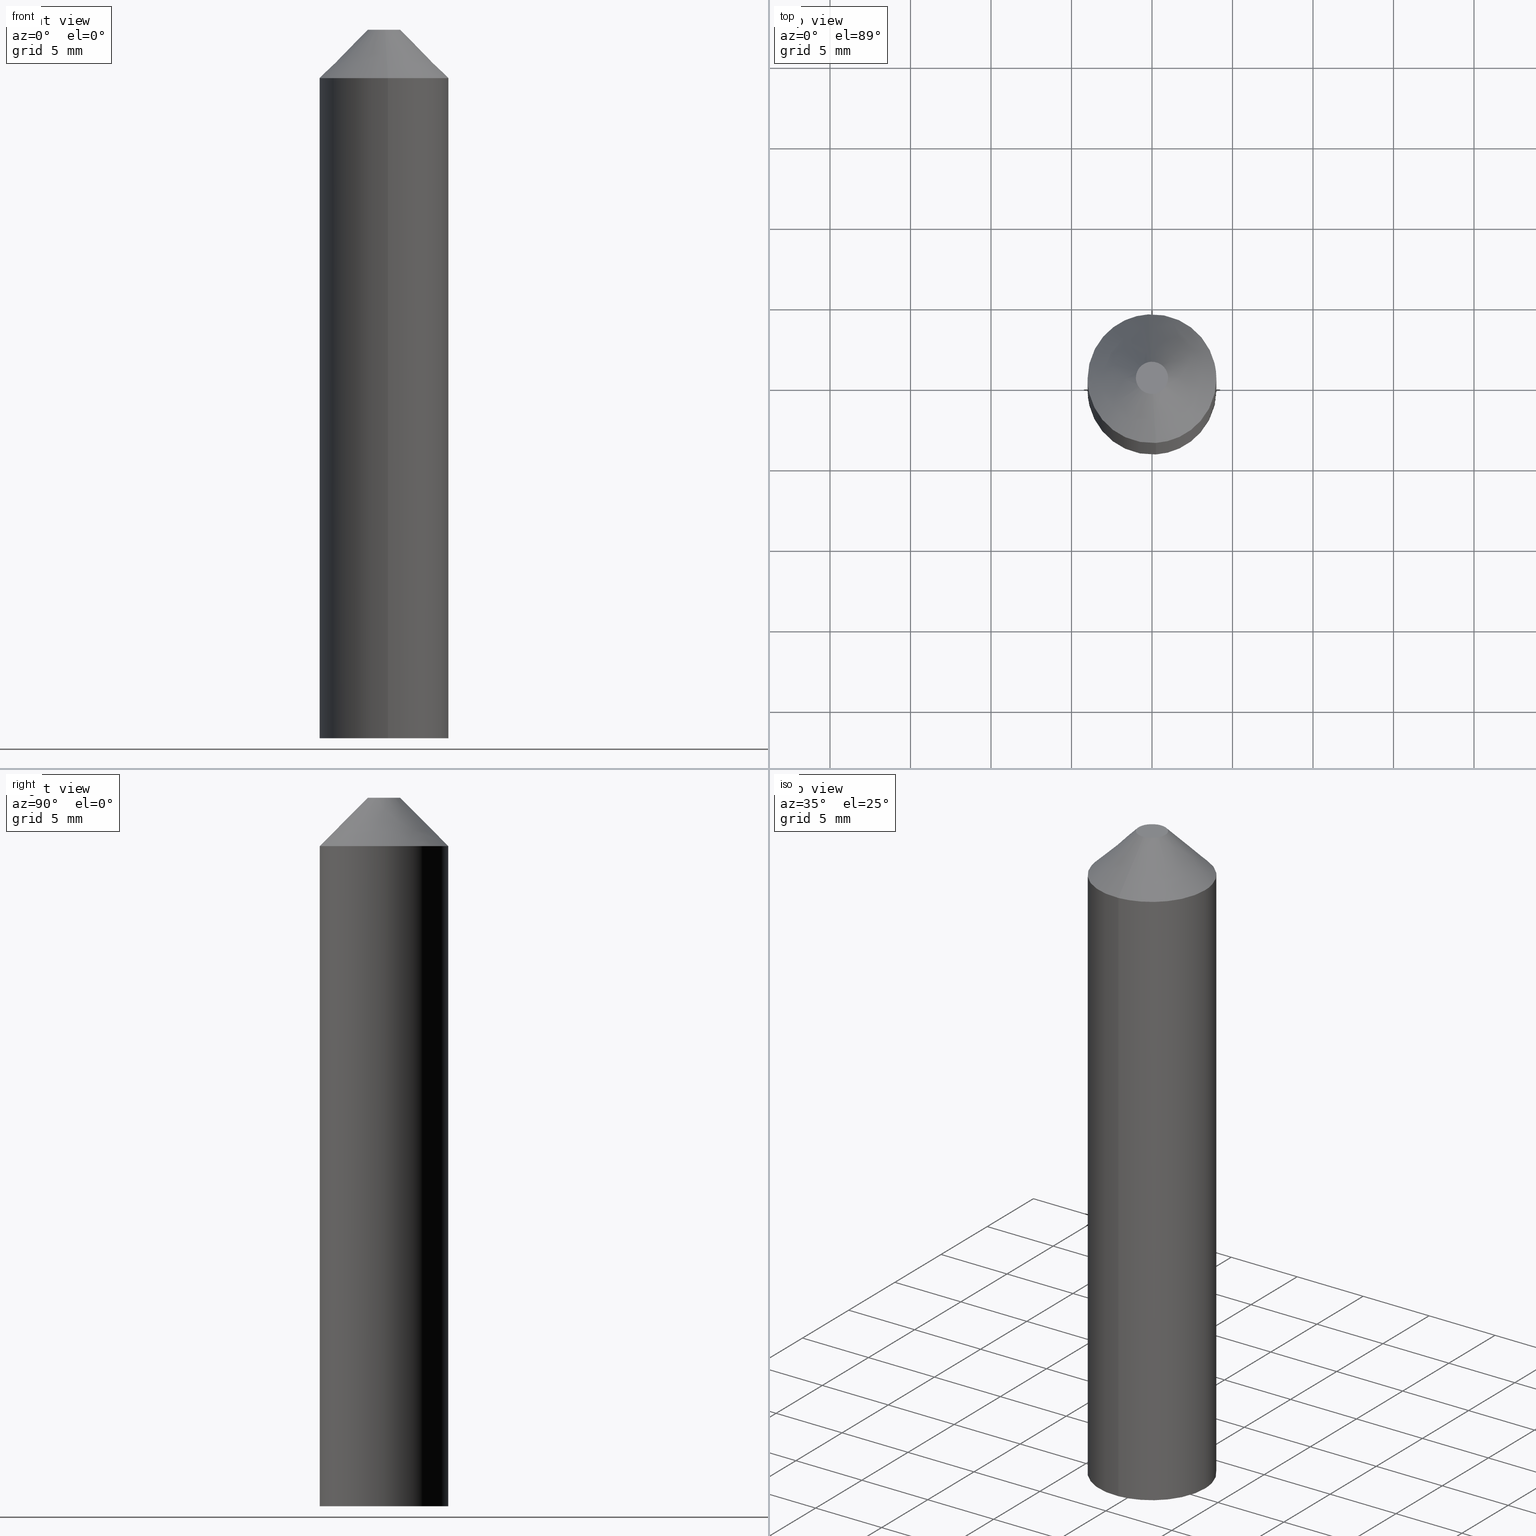
[diagram: canonical four-view strip — front | top / right | iso, engineering-drawing reading convention]
A machine part, canonical four-view strip (front | top / right | iso — engineering-drawing reading convention). The complete STEP part file that produces these views, byte-faithful:
ISO-10303-21;
HEADER;
/****************************************************************
 * Generated by software with PDE/Lib inside                    *
 * PDElib Version v5.1, created Sun 05/01/2005                  *
 * International Technegroup Inc. (www.iti-oh.com)              *
 ****************************************************************/
FILE_DESCRIPTION((''),'2;1');
FILE_NAME('','2008-04-30T17:53:59',(''),(''),'','CADfix','');
FILE_SCHEMA(('AUTOMOTIVE_DESIGN { 1 0 10303 214 1 1 1 1 }'));
ENDSEC;
DATA;
#5=CARTESIAN_POINT('',(3.244704988564655,-3.244632392562092,40.0));
#6=CARTESIAN_POINT('',(-3.244705146814987,-3.244632392562092,40.0));
#7=CARTESIAN_POINT('',(3.244704988564655,3.244632287061871,40.0));
#8=CARTESIAN_POINT('',(-3.244705146814987,3.244632287061871,40.0));
#9=B_SPLINE_SURFACE_WITH_KNOTS('',1,1,((#5,#7),(#6,#8)),.UNSPECIFIED.,.F.,.F.,.U.,(2,2),(2,2),(0.0,6.489410135379641),(0.0,6.489264679623962),.UNSPECIFIED.);
#10=CARTESIAN_POINT('',(-2.950000000000000,0.0,40.0));
#11=VERTEX_POINT('',#10);
#12=CARTESIAN_POINT('',(-0.180093191696353,2.944497655340316,40.0));
#13=VERTEX_POINT('',#12);
#14=CARTESIAN_POINT('',(-2.950000000000000,0.0,40.0));
#15=CARTESIAN_POINT('',(-2.949999999999999,2.775082897307097,39.999999999999993));
#16=CARTESIAN_POINT('',(-0.180093191696353,2.944497655340316,40.000000000000007));
#24=(BOUNDED_CURVE()B_SPLINE_CURVE(2,(#14,#15,#16),.UNSPECIFIED.,.F.,.U.)B_SPLINE_CURVE_WITH_KNOTS((3,3),(0.0,0.239332962237953),.UNSPECIFIED.)CURVE()GEOMETRIC_REPRESENTATION_ITEM()RATIONAL_B_SPLINE_CURVE((1.0,0.719603993287870,0.976072041664596))REPRESENTATION_ITEM(''));
#25=EDGE_CURVE('',#11,#13,#24,.T.);
#26=ORIENTED_EDGE('',*,*,#25,.T.);
#27=CARTESIAN_POINT('',(2.950000000000000,0.0,40.0));
#28=VERTEX_POINT('',#27);
#29=CARTESIAN_POINT('',(-0.180093191696353,2.944497655340316,40.000000000000007));
#30=CARTESIAN_POINT('',(-0.090130651765196,2.950000000000000,40.000000000000007));
#31=CARTESIAN_POINT('',(0.0,2.950000000000000,40.0));
#32=CARTESIAN_POINT('',(2.950000000000000,2.950000000000000,39.999999999999993));
#33=CARTESIAN_POINT('',(2.950000000000000,0.0,40.0));
#41=(BOUNDED_CURVE()B_SPLINE_CURVE(2,(#29,#30,#31,#32,#33),.UNSPECIFIED.,.F.,.U.)B_SPLINE_CURVE_WITH_KNOTS((3,2,3),(0.239332962237953,0.250000000000000,0.500000000000000),.UNSPECIFIED.)CURVE()GEOMETRIC_REPRESENTATION_ITEM()RATIONAL_B_SPLINE_CURVE((0.976072041664596,0.987502787898677,1.0,0.707106781186548,1.0))REPRESENTATION_ITEM(''));
#42=EDGE_CURVE('',#13,#28,#41,.T.);
#43=ORIENTED_EDGE('',*,*,#42,.T.);
#44=CARTESIAN_POINT('',(0.180093191696353,-2.944497655340316,39.999999999999993));
#45=VERTEX_POINT('',#44);
#46=CARTESIAN_POINT('',(2.950000000000000,0.0,40.0));
#47=CARTESIAN_POINT('',(2.949999999999999,-2.775082897307097,39.999999999999993));
#48=CARTESIAN_POINT('',(0.180093191696353,-2.944497655340316,40.000000000000007));
#56=(BOUNDED_CURVE()B_SPLINE_CURVE(2,(#46,#47,#48),.UNSPECIFIED.,.F.,.U.)B_SPLINE_CURVE_WITH_KNOTS((3,3),(0.500000000000000,0.739332962237953),.UNSPECIFIED.)CURVE()GEOMETRIC_REPRESENTATION_ITEM()RATIONAL_B_SPLINE_CURVE((1.0,0.719603993287870,0.976072041664596))REPRESENTATION_ITEM(''));
#57=EDGE_CURVE('',#28,#45,#56,.T.);
#58=ORIENTED_EDGE('',*,*,#57,.T.);
#59=CARTESIAN_POINT('',(0.180093191696353,-2.944497655340316,40.000000000000007));
#60=CARTESIAN_POINT('',(0.090130651765196,-2.950000000000000,40.000000000000007));
#61=CARTESIAN_POINT('',(0.0,-2.950000000000000,40.0));
#62=CARTESIAN_POINT('',(-2.950000000000000,-2.950000000000000,39.999999999999993));
#63=CARTESIAN_POINT('',(-2.950000000000000,0.0,40.0));
#71=(BOUNDED_CURVE()B_SPLINE_CURVE(2,(#59,#60,#61,#62,#63),.UNSPECIFIED.,.F.,.U.)B_SPLINE_CURVE_WITH_KNOTS((3,2,3),(0.739332962237953,0.750000000000000,1.0),.UNSPECIFIED.)CURVE()GEOMETRIC_REPRESENTATION_ITEM()RATIONAL_B_SPLINE_CURVE((0.976072041664596,0.987502787898677,1.0,0.707106781186548,1.0))REPRESENTATION_ITEM(''));
#72=EDGE_CURVE('',#45,#11,#71,.T.);
#73=ORIENTED_EDGE('',*,*,#72,.T.);
#74=EDGE_LOOP('',(#26,#43,#58,#73));
#75=FACE_OUTER_BOUND('',#74,.T.);
#76=ADVANCED_FACE('',(#75),#9,.T.);
#77=CARTESIAN_POINT('',(-0.180093191627828,2.944497655344507,41.000000000000007));
#78=CARTESIAN_POINT('',(2.764404463716679,3.124590846972335,41.000000000000014));
#79=CARTESIAN_POINT('',(2.944497655344507,0.180093191627828,41.000000000000007));
#80=CARTESIAN_POINT('',(3.124590846972335,-2.764404463716679,41.000000000000014));
#81=CARTESIAN_POINT('',(0.180093191627828,-2.944497655344507,41.000000000000007));
#82=CARTESIAN_POINT('',(-0.180093191627828,2.944497655344507,-1.024999999999999));
#83=CARTESIAN_POINT('',(2.764404463716679,3.124590846972335,-1.024999999999999));
#84=CARTESIAN_POINT('',(2.944497655344507,0.180093191627828,-1.024999999999999));
#85=CARTESIAN_POINT('',(3.124590846972335,-2.764404463716679,-1.024999999999999));
#86=CARTESIAN_POINT('',(0.180093191627828,-2.944497655344507,-1.024999999999999));
#94=(BOUNDED_SURFACE()B_SPLINE_SURFACE(2,1,((#77,#82),(#78,#83),(#79,#84),(#80,#85),(#81,#86)),.UNSPECIFIED.,.F.,.F.,.U.)B_SPLINE_SURFACE_WITH_KNOTS((3,2,3),(2,2),(0.0,4.887720036002521,9.775440072005042),(0.0,42.025000000000013),.UNSPECIFIED.)GEOMETRIC_REPRESENTATION_ITEM()RATIONAL_B_SPLINE_SURFACE(((1.0,1.0),(0.707106781186548,0.707106781186548),(1.0,1.0),(0.707106781186548,0.707106781186548),(1.0,1.0)))REPRESENTATION_ITEM('')SURFACE());
#95=CARTESIAN_POINT('',(-0.180093191696353,2.944497655340316,-1.054712E-015));
#96=VERTEX_POINT('',#95);
#97=CARTESIAN_POINT('',(2.950000000000000,0.0,0.0));
#98=VERTEX_POINT('',#97);
#99=CARTESIAN_POINT('',(-0.180093191696353,2.944497655340316,0.0));
#100=CARTESIAN_POINT('',(-0.090130651765196,2.950000000000000,0.0));
#101=CARTESIAN_POINT('',(0.0,2.950000000000000,0.0));
#102=CARTESIAN_POINT('',(2.950000000000000,2.950000000000000,0.0));
#103=CARTESIAN_POINT('',(2.950000000000000,0.0,0.0));
#111=(BOUNDED_CURVE()B_SPLINE_CURVE(2,(#99,#100,#101,#102,#103),.UNSPECIFIED.,.F.,.U.)B_SPLINE_CURVE_WITH_KNOTS((3,2,3),(0.239332962237953,0.250000000000000,0.500000000000000),.UNSPECIFIED.)CURVE()GEOMETRIC_REPRESENTATION_ITEM()RATIONAL_B_SPLINE_CURVE((0.976072041664596,0.987502787898677,1.0,0.707106781186548,1.0))REPRESENTATION_ITEM(''));
#112=EDGE_CURVE('',#96,#98,#111,.T.);
#113=ORIENTED_EDGE('',*,*,#112,.T.);
#114=CARTESIAN_POINT('',(0.180093191696353,-2.944497655340316,-1.054712E-015));
#115=VERTEX_POINT('',#114);
#116=CARTESIAN_POINT('',(2.950000000000000,0.0,0.0));
#117=CARTESIAN_POINT('',(2.949999999999999,-2.775082897307097,0.0));
#118=CARTESIAN_POINT('',(0.180093191696353,-2.944497655340316,0.0));
#126=(BOUNDED_CURVE()B_SPLINE_CURVE(2,(#116,#117,#118),.UNSPECIFIED.,.F.,.U.)B_SPLINE_CURVE_WITH_KNOTS((3,3),(0.500000000000000,0.739332962237953),.UNSPECIFIED.)CURVE()GEOMETRIC_REPRESENTATION_ITEM()RATIONAL_B_SPLINE_CURVE((1.0,0.719603993287870,0.976072041664596))REPRESENTATION_ITEM(''));
#127=EDGE_CURVE('',#98,#115,#126,.T.);
#128=ORIENTED_EDGE('',*,*,#127,.T.);
#129=CARTESIAN_POINT('',(0.180093191696353,-2.944497655340316,39.999999999999993));
#130=CARTESIAN_POINT('',(0.180093191696353,-2.944497655340316,-1.054712E-015));
#131=QUASI_UNIFORM_CURVE('',1,(#129,#130),.UNSPECIFIED.,.F.,.U.);
#132=EDGE_CURVE('',#45,#115,#131,.T.);
#133=ORIENTED_EDGE('',*,*,#132,.F.);
#134=ORIENTED_EDGE('',*,*,#57,.F.);
#135=ORIENTED_EDGE('',*,*,#42,.F.);
#136=CARTESIAN_POINT('',(-0.180093191696353,2.944497655340316,40.0));
#137=CARTESIAN_POINT('',(-0.180093191696353,2.944497655340316,-1.054712E-015));
#138=QUASI_UNIFORM_CURVE('',1,(#136,#137),.UNSPECIFIED.,.F.,.U.);
#139=EDGE_CURVE('',#13,#96,#138,.T.);
#140=ORIENTED_EDGE('',*,*,#139,.T.);
#141=EDGE_LOOP('',(#113,#128,#133,#134,#135,#140));
#142=FACE_OUTER_BOUND('',#141,.T.);
#143=ADVANCED_FACE('',(#142),#94,.F.);
#144=CARTESIAN_POINT('',(0.180093191627828,-2.944497655344507,41.000000000000007));
#145=CARTESIAN_POINT('',(-2.764404463716679,-3.124590846972335,41.000000000000014));
#146=CARTESIAN_POINT('',(-2.944497655344507,-0.180093191627828,41.000000000000007));
#147=CARTESIAN_POINT('',(-3.124590846972335,2.764404463716679,41.000000000000014));
#148=CARTESIAN_POINT('',(-0.180093191627828,2.944497655344507,41.000000000000007));
#149=CARTESIAN_POINT('',(0.180093191627828,-2.944497655344507,-1.024999999999999));
#150=CARTESIAN_POINT('',(-2.764404463716679,-3.124590846972335,-1.024999999999999));
#151=CARTESIAN_POINT('',(-2.944497655344507,-0.180093191627828,-1.024999999999999));
#152=CARTESIAN_POINT('',(-3.124590846972335,2.764404463716679,-1.024999999999999));
#153=CARTESIAN_POINT('',(-0.180093191627828,2.944497655344507,-1.024999999999999));
#161=(BOUNDED_SURFACE()B_SPLINE_SURFACE(2,1,((#144,#149),(#145,#150),(#146,#151),(#147,#152),(#148,#153)),.UNSPECIFIED.,.F.,.F.,.U.)B_SPLINE_SURFACE_WITH_KNOTS((3,2,3),(2,2),(0.0,4.887720036002521,9.775440072005042),(0.0,42.025000000000013),.UNSPECIFIED.)GEOMETRIC_REPRESENTATION_ITEM()RATIONAL_B_SPLINE_SURFACE(((1.0,1.0),(0.707106781186548,0.707106781186548),(1.0,1.0),(0.707106781186548,0.707106781186548),(1.0,1.0)))REPRESENTATION_ITEM('')SURFACE());
#162=CARTESIAN_POINT('',(-2.950000000000000,0.0,0.0));
#163=VERTEX_POINT('',#162);
#164=CARTESIAN_POINT('',(-2.950000000000000,0.0,0.0));
#165=CARTESIAN_POINT('',(-2.949999999999999,2.775082897307097,0.0));
#166=CARTESIAN_POINT('',(-0.180093191696353,2.944497655340316,0.0));
#174=(BOUNDED_CURVE()B_SPLINE_CURVE(2,(#164,#165,#166),.UNSPECIFIED.,.F.,.U.)B_SPLINE_CURVE_WITH_KNOTS((3,3),(0.0,0.239332962237953),.UNSPECIFIED.)CURVE()GEOMETRIC_REPRESENTATION_ITEM()RATIONAL_B_SPLINE_CURVE((1.0,0.719603993287870,0.976072041664596))REPRESENTATION_ITEM(''));
#175=EDGE_CURVE('',#163,#96,#174,.T.);
#176=ORIENTED_EDGE('',*,*,#175,.T.);
#177=ORIENTED_EDGE('',*,*,#139,.F.);
#178=ORIENTED_EDGE('',*,*,#25,.F.);
#179=ORIENTED_EDGE('',*,*,#72,.F.);
#180=ORIENTED_EDGE('',*,*,#132,.T.);
#181=CARTESIAN_POINT('',(0.180093191696353,-2.944497655340316,0.0));
#182=CARTESIAN_POINT('',(0.090130651765196,-2.950000000000000,0.0));
#183=CARTESIAN_POINT('',(0.0,-2.950000000000000,0.0));
#184=CARTESIAN_POINT('',(-2.950000000000000,-2.950000000000000,0.0));
#185=CARTESIAN_POINT('',(-2.950000000000000,0.0,0.0));
#193=(BOUNDED_CURVE()B_SPLINE_CURVE(2,(#181,#182,#183,#184,#185),.UNSPECIFIED.,.F.,.U.)B_SPLINE_CURVE_WITH_KNOTS((3,2,3),(0.739332962237953,0.750000000000000,1.0),.UNSPECIFIED.)CURVE()GEOMETRIC_REPRESENTATION_ITEM()RATIONAL_B_SPLINE_CURVE((0.976072041664596,0.987502787898677,1.0,0.707106781186548,1.0))REPRESENTATION_ITEM(''));
#194=EDGE_CURVE('',#115,#163,#193,.T.);
#195=ORIENTED_EDGE('',*,*,#194,.T.);
#196=EDGE_LOOP('',(#176,#177,#178,#179,#180,#195));
#197=FACE_OUTER_BOUND('',#196,.T.);
#198=ADVANCED_FACE('',(#197),#161,.F.);
#199=CARTESIAN_POINT('',(4.399599984494448,-4.399501549236708,0.0));
#200=CARTESIAN_POINT('',(-4.399600199071169,-4.399501549236708,0.0));
#201=CARTESIAN_POINT('',(4.399599984494448,4.399501406185560,0.0));
#202=CARTESIAN_POINT('',(-4.399600199071169,4.399501406185560,0.0));
#203=B_SPLINE_SURFACE_WITH_KNOTS('',1,1,((#199,#201),(#200,#202)),.UNSPECIFIED.,.F.,.F.,.U.,(2,2),(2,2),(0.0,8.799200183565617),(0.0,8.799002955422267),.UNSPECIFIED.);
#204=CARTESIAN_POINT('',(-4.0,0.0,0.0));
#205=VERTEX_POINT('',#204);
#206=CARTESIAN_POINT('',(-0.244194158160723,3.992539193686165,1.110223E-015));
#207=VERTEX_POINT('',#206);
#208=CARTESIAN_POINT('',(-4.0,0.0,0.0));
#209=CARTESIAN_POINT('',(-4.0,3.762824267602673,0.0));
#210=CARTESIAN_POINT('',(-0.244194158160722,3.992539193686166,0.0));
#218=(BOUNDED_CURVE()B_SPLINE_CURVE(2,(#208,#209,#210),.UNSPECIFIED.,.F.,.U.)B_SPLINE_CURVE_WITH_KNOTS((3,3),(0.0,0.239332962241048),.UNSPECIFIED.)CURVE()GEOMETRIC_REPRESENTATION_ITEM()RATIONAL_B_SPLINE_CURVE((1.0,0.719603993284244,0.976072041671229))REPRESENTATION_ITEM(''));
#219=EDGE_CURVE('',#205,#207,#218,.T.);
#220=ORIENTED_EDGE('',*,*,#219,.T.);
#221=CARTESIAN_POINT('',(4.0,0.0,0.0));
#222=VERTEX_POINT('',#221);
#223=CARTESIAN_POINT('',(-0.244194158160722,3.992539193686166,0.0));
#224=CARTESIAN_POINT('',(-0.122211053205033,4.000000000000001,0.0));
#225=CARTESIAN_POINT('',(0.0,4.0,0.0));
#226=CARTESIAN_POINT('',(4.000000000000000,4.000000000000000,0.0));
#227=CARTESIAN_POINT('',(4.0,0.0,0.0));
#235=(BOUNDED_CURVE()B_SPLINE_CURVE(2,(#223,#224,#225,#226,#227),.UNSPECIFIED.,.F.,.U.)B_SPLINE_CURVE_WITH_KNOTS((3,2,3),(0.239332962241048,0.250000000000000,0.500000000000000),.UNSPECIFIED.)CURVE()GEOMETRIC_REPRESENTATION_ITEM()RATIONAL_B_SPLINE_CURVE((0.976072041671229,0.987502787902304,1.0,0.707106781186548,1.0))REPRESENTATION_ITEM(''));
#236=EDGE_CURVE('',#207,#222,#235,.T.);
#237=ORIENTED_EDGE('',*,*,#236,.T.);
#238=CARTESIAN_POINT('',(0.244194158160722,-3.992539193686165,1.110223E-015));
#239=VERTEX_POINT('',#238);
#240=CARTESIAN_POINT('',(4.0,0.0,0.0));
#241=CARTESIAN_POINT('',(4.000000000000000,-3.762824267602673,0.0));
#242=CARTESIAN_POINT('',(0.244194158160721,-3.992539193686166,0.0));
#250=(BOUNDED_CURVE()B_SPLINE_CURVE(2,(#240,#241,#242),.UNSPECIFIED.,.F.,.U.)B_SPLINE_CURVE_WITH_KNOTS((3,3),(0.500000000000000,0.739332962241048),.UNSPECIFIED.)CURVE()GEOMETRIC_REPRESENTATION_ITEM()RATIONAL_B_SPLINE_CURVE((1.0,0.719603993284244,0.976072041671229))REPRESENTATION_ITEM(''));
#251=EDGE_CURVE('',#222,#239,#250,.T.);
#252=ORIENTED_EDGE('',*,*,#251,.T.);
#253=CARTESIAN_POINT('',(0.244194158160721,-3.992539193686166,0.0));
#254=CARTESIAN_POINT('',(0.122211053205032,-4.0,0.0));
#255=CARTESIAN_POINT('',(0.0,-4.0,0.0));
#256=CARTESIAN_POINT('',(-4.000000000000000,-4.000000000000000,0.0));
#257=CARTESIAN_POINT('',(-4.0,0.0,0.0));
#265=(BOUNDED_CURVE()B_SPLINE_CURVE(2,(#253,#254,#255,#256,#257),.UNSPECIFIED.,.F.,.U.)B_SPLINE_CURVE_WITH_KNOTS((3,2,3),(0.739332962241048,0.750000000000000,1.0),.UNSPECIFIED.)CURVE()GEOMETRIC_REPRESENTATION_ITEM()RATIONAL_B_SPLINE_CURVE((0.976072041671229,0.987502787902304,1.0,0.707106781186548,1.0))REPRESENTATION_ITEM(''));
#266=EDGE_CURVE('',#239,#205,#265,.T.);
#267=ORIENTED_EDGE('',*,*,#266,.T.);
#268=EDGE_LOOP('',(#220,#237,#252,#267));
#269=FACE_OUTER_BOUND('',#268,.T.);
#270=ORIENTED_EDGE('',*,*,#127,.F.);
#271=ORIENTED_EDGE('',*,*,#112,.F.);
#272=ORIENTED_EDGE('',*,*,#175,.F.);
#273=ORIENTED_EDGE('',*,*,#194,.F.);
#274=EDGE_LOOP('',(#270,#271,#272,#273));
#275=FACE_BOUND('',#274,.T.);
#276=ADVANCED_FACE('',(#269,#275),#203,.T.);
#277=CARTESIAN_POINT('',(-0.244194158139428,3.992539193687467,42.025000000000013));
#278=CARTESIAN_POINT('',(3.748345035548039,4.236733351826894,42.025000000000013));
#279=CARTESIAN_POINT('',(3.992539193687467,0.244194158139428,42.025000000000013));
#280=CARTESIAN_POINT('',(4.236733351826894,-3.748345035548039,42.025000000000013));
#281=CARTESIAN_POINT('',(0.244194158139428,-3.992539193687467,42.025000000000013));
#282=CARTESIAN_POINT('',(-0.244194158139428,3.992539193687467,-1.050625000000004));
#283=CARTESIAN_POINT('',(3.748345035548039,4.236733351826894,-1.050625000000004));
#284=CARTESIAN_POINT('',(3.992539193687467,0.244194158139428,-1.050625000000004));
#285=CARTESIAN_POINT('',(4.236733351826894,-3.748345035548039,-1.050625000000004));
#286=CARTESIAN_POINT('',(0.244194158139428,-3.992539193687467,-1.050625000000004));
#294=(BOUNDED_SURFACE()B_SPLINE_SURFACE(2,1,((#277,#282),(#278,#283),(#279,#284),(#280,#285),(#281,#286)),.UNSPECIFIED.,.F.,.F.,.U.)B_SPLINE_SURFACE_WITH_KNOTS((3,2,3),(2,2),(0.0,6.627416997969518,13.254833995939039),(0.0,43.075625000000009),.UNSPECIFIED.)GEOMETRIC_REPRESENTATION_ITEM()RATIONAL_B_SPLINE_SURFACE(((1.0,1.0),(0.707106781186548,0.707106781186548),(1.0,1.0),(0.707106781186548,0.707106781186548),(1.0,1.0)))REPRESENTATION_ITEM('')SURFACE());
#295=CARTESIAN_POINT('',(-0.244194158174903,3.992539193689956,40.999999999990713));
#296=VERTEX_POINT('',#295);
#297=CARTESIAN_POINT('',(-0.244194158174903,3.992539193689956,40.999999999990713));
#298=CARTESIAN_POINT('',(-0.244194158160723,3.992539193686165,1.110223E-015));
#299=QUASI_UNIFORM_CURVE('',1,(#297,#298),.UNSPECIFIED.,.F.,.U.);
#300=EDGE_CURVE('',#296,#207,#299,.T.);
#301=ORIENTED_EDGE('',*,*,#300,.F.);
#302=CARTESIAN_POINT('',(4.0,0.0,41.0));
#303=VERTEX_POINT('',#302);
#304=CARTESIAN_POINT('',(-0.244194158174903,3.992539193689956,40.999999999990706));
#305=CARTESIAN_POINT('',(-0.122211053195240,4.000000000006696,40.999999999990834));
#306=CARTESIAN_POINT('',(3.387205E-011,4.000000000006592,40.999999999990983));
#307=CARTESIAN_POINT('',(4.000000000016419,4.000000000003194,40.999999999995630));
#308=CARTESIAN_POINT('',(4.0,0.0,41.0));
#316=(BOUNDED_CURVE()B_SPLINE_CURVE(2,(#304,#305,#306,#307,#308),.UNSPECIFIED.,.F.,.U.)B_SPLINE_CURVE_WITH_KNOTS((3,2,3),(0.239332962238927,0.250000000000000,0.500000000000000),.UNSPECIFIED.)CURVE()GEOMETRIC_REPRESENTATION_ITEM()RATIONAL_B_SPLINE_CURVE((0.976072041666683,0.987502787899818,1.0,0.707106781186548,1.0))REPRESENTATION_ITEM(''));
#317=EDGE_CURVE('',#296,#303,#316,.T.);
#318=ORIENTED_EDGE('',*,*,#317,.T.);
#319=CARTESIAN_POINT('',(0.244194158174903,-3.992539193689955,40.999999999990713));
#320=VERTEX_POINT('',#319);
#321=CARTESIAN_POINT('',(4.0,0.0,41.0));
#322=CARTESIAN_POINT('',(3.999999999982546,-3.762824267559718,40.999999999995346));
#323=CARTESIAN_POINT('',(0.244194158174903,-3.992539193689955,40.999999999990713));
#331=(BOUNDED_CURVE()B_SPLINE_CURVE(2,(#321,#322,#323),.UNSPECIFIED.,.F.,.U.)B_SPLINE_CURVE_WITH_KNOTS((3,3),(0.500000000000000,0.739332962238927),.UNSPECIFIED.)CURVE()GEOMETRIC_REPRESENTATION_ITEM()RATIONAL_B_SPLINE_CURVE((1.0,0.719603993286729,0.976072041666683))REPRESENTATION_ITEM(''));
#332=EDGE_CURVE('',#303,#320,#331,.T.);
#333=ORIENTED_EDGE('',*,*,#332,.T.);
#334=CARTESIAN_POINT('',(0.244194158174903,-3.992539193689955,40.999999999990713));
#335=CARTESIAN_POINT('',(0.244194158160722,-3.992539193686165,1.110223E-015));
#336=QUASI_UNIFORM_CURVE('',1,(#334,#335),.UNSPECIFIED.,.F.,.U.);
#337=EDGE_CURVE('',#320,#239,#336,.T.);
#338=ORIENTED_EDGE('',*,*,#337,.T.);
#339=ORIENTED_EDGE('',*,*,#251,.F.);
#340=ORIENTED_EDGE('',*,*,#236,.F.);
#341=EDGE_LOOP('',(#301,#318,#333,#338,#339,#340));
#342=FACE_OUTER_BOUND('',#341,.T.);
#343=ADVANCED_FACE('',(#342),#294,.T.);
#344=CARTESIAN_POINT('',(0.244194158139428,-3.992539193687467,42.025000000000013));
#345=CARTESIAN_POINT('',(-3.748345035548039,-4.236733351826894,42.025000000000013));
#346=CARTESIAN_POINT('',(-3.992539193687467,-0.244194158139428,42.025000000000013));
#347=CARTESIAN_POINT('',(-4.236733351826894,3.748345035548039,42.025000000000013));
#348=CARTESIAN_POINT('',(-0.244194158139428,3.992539193687467,42.025000000000013));
#349=CARTESIAN_POINT('',(0.244194158139428,-3.992539193687467,-1.050625000000004));
#350=CARTESIAN_POINT('',(-3.748345035548039,-4.236733351826894,-1.050625000000004));
#351=CARTESIAN_POINT('',(-3.992539193687467,-0.244194158139428,-1.050625000000004));
#352=CARTESIAN_POINT('',(-4.236733351826894,3.748345035548039,-1.050625000000004));
#353=CARTESIAN_POINT('',(-0.244194158139428,3.992539193687467,-1.050625000000004));
#361=(BOUNDED_SURFACE()B_SPLINE_SURFACE(2,1,((#344,#349),(#345,#350),(#346,#351),(#347,#352),(#348,#353)),.UNSPECIFIED.,.F.,.F.,.U.)B_SPLINE_SURFACE_WITH_KNOTS((3,2,3),(2,2),(0.0,6.627416997969518,13.254833995939039),(0.0,43.075625000000009),.UNSPECIFIED.)GEOMETRIC_REPRESENTATION_ITEM()RATIONAL_B_SPLINE_SURFACE(((1.0,1.0),(0.707106781186548,0.707106781186548),(1.0,1.0),(0.707106781186548,0.707106781186548),(1.0,1.0)))REPRESENTATION_ITEM('')SURFACE());
#362=ORIENTED_EDGE('',*,*,#300,.T.);
#363=ORIENTED_EDGE('',*,*,#219,.F.);
#364=ORIENTED_EDGE('',*,*,#266,.F.);
#365=ORIENTED_EDGE('',*,*,#337,.F.);
#366=CARTESIAN_POINT('',(-4.0,0.0,41.0));
#367=VERTEX_POINT('',#366);
#368=CARTESIAN_POINT('',(0.244194158174903,-3.992539193689955,40.999999999990713));
#369=CARTESIAN_POINT('',(0.122211053195239,-4.000000000006694,40.999999999990841));
#370=CARTESIAN_POINT('',(-3.387327E-011,-4.000000000006591,40.999999999990983));
#371=CARTESIAN_POINT('',(-4.000000000016420,-4.000000000003194,40.999999999995630));
#372=CARTESIAN_POINT('',(-4.0,0.0,41.0));
#380=(BOUNDED_CURVE()B_SPLINE_CURVE(2,(#368,#369,#370,#371,#372),.UNSPECIFIED.,.F.,.U.)B_SPLINE_CURVE_WITH_KNOTS((3,2,3),(0.739332962238927,0.750000000000000,1.0),.UNSPECIFIED.)CURVE()GEOMETRIC_REPRESENTATION_ITEM()RATIONAL_B_SPLINE_CURVE((0.976072041666683,0.987502787899818,1.0,0.707106781186548,1.0))REPRESENTATION_ITEM(''));
#381=EDGE_CURVE('',#320,#367,#380,.T.);
#382=ORIENTED_EDGE('',*,*,#381,.T.);
#383=CARTESIAN_POINT('',(-4.0,0.0,41.0));
#384=CARTESIAN_POINT('',(-3.999999999982547,3.762824267559719,40.999999999995353));
#385=CARTESIAN_POINT('',(-0.244194158174903,3.992539193689956,40.999999999990706));
#393=(BOUNDED_CURVE()B_SPLINE_CURVE(2,(#383,#384,#385),.UNSPECIFIED.,.F.,.U.)B_SPLINE_CURVE_WITH_KNOTS((3,3),(0.0,0.239332962238927),.UNSPECIFIED.)CURVE()GEOMETRIC_REPRESENTATION_ITEM()RATIONAL_B_SPLINE_CURVE((1.0,0.719603993286729,0.976072041666683))REPRESENTATION_ITEM(''));
#394=EDGE_CURVE('',#367,#296,#393,.T.);
#395=ORIENTED_EDGE('',*,*,#394,.T.);
#396=EDGE_LOOP('',(#362,#363,#364,#365,#382,#395));
#397=FACE_OUTER_BOUND('',#396,.T.);
#398=ADVANCED_FACE('',(#397),#361,.T.);
#399=CARTESIAN_POINT('',(-0.056469899069552,0.923274688537112,44.075000000000010));
#400=CARTESIAN_POINT('',(0.866804789467560,0.979744587606664,44.075000000000010));
#401=CARTESIAN_POINT('',(0.923274688537112,0.056469899069552,44.075000000000010));
#402=CARTESIAN_POINT('',(0.979744587606664,-0.866804789467560,44.075000000000010));
#403=CARTESIAN_POINT('',(0.056469899069552,-0.923274688537112,44.075000000000010));
#404=CARTESIAN_POINT('',(-0.248887264616175,4.069270806316234,40.923124999999992));
#405=CARTESIAN_POINT('',(3.820383541700059,4.318158070932409,40.923124999999992));
#406=CARTESIAN_POINT('',(4.069270806316234,0.248887264616175,40.923124999999992));
#407=CARTESIAN_POINT('',(4.318158070932409,-3.820383541700059,40.923124999999992));
#408=CARTESIAN_POINT('',(0.248887264616175,-4.069270806316234,40.923124999999992));
#416=(BOUNDED_SURFACE()B_SPLINE_SURFACE(2,1,((#399,#404),(#400,#405),(#401,#406),(#402,#407),(#403,#408)),.UNSPECIFIED.,.F.,.F.,.U.)B_SPLINE_SURFACE_WITH_KNOTS((3,2,3),(2,2),(0.0,6.754787668399389,13.509575336798781),(0.0,4.457424371906979),.UNSPECIFIED.)GEOMETRIC_REPRESENTATION_ITEM()RATIONAL_B_SPLINE_SURFACE(((1.0,1.0),(0.707106781186548,0.707106781186548),(1.0,1.0),(0.707106781186548,0.707106781186548),(1.0,1.0)))REPRESENTATION_ITEM('')SURFACE());
#417=CARTESIAN_POINT('',(-0.061048540107989,0.998134798459561,43.999999999924313));
#418=VERTEX_POINT('',#417);
#419=CARTESIAN_POINT('',(0.999999999996874,0.0,44.0));
#420=VERTEX_POINT('',#419);
#421=CARTESIAN_POINT('',(-0.061048540107989,0.998134798459561,43.999999999924306));
#422=CARTESIAN_POINT('',(-0.030552763588197,1.000000000071385,43.999999999925386));
#423=CARTESIAN_POINT('',(-4.486652E-012,1.000000000070230,43.999999999926551));
#424=CARTESIAN_POINT('',(0.999999999994699,1.000000000032431,43.999999999964402));
#425=CARTESIAN_POINT('',(0.999999999996874,0.0,44.0));
#433=(BOUNDED_CURVE()B_SPLINE_CURVE(2,(#421,#422,#423,#424,#425),.UNSPECIFIED.,.F.,.U.)B_SPLINE_CURVE_WITH_KNOTS((3,2,3),(0.239332962143658,0.250000000000000,0.500000000000000),.UNSPECIFIED.)CURVE()GEOMETRIC_REPRESENTATION_ITEM()RATIONAL_B_SPLINE_CURVE((0.976072041462504,0.987502787788204,1.0,0.707106781186548,1.0))REPRESENTATION_ITEM(''));
#434=EDGE_CURVE('',#418,#420,#433,.T.);
#435=ORIENTED_EDGE('',*,*,#434,.T.);
#436=CARTESIAN_POINT('',(0.061048540107988,-0.998134798459558,43.999999999924313));
#437=VERTEX_POINT('',#436);
#438=CARTESIAN_POINT('',(0.999999999996874,0.0,44.0));
#439=CARTESIAN_POINT('',(0.999999999999186,-0.940706066403572,43.999999999962156));
#440=CARTESIAN_POINT('',(0.061048540107988,-0.998134798459558,43.999999999924313));
#448=(BOUNDED_CURVE()B_SPLINE_CURVE(2,(#438,#439,#440),.UNSPECIFIED.,.F.,.U.)B_SPLINE_CURVE_WITH_KNOTS((3,3),(0.500000000000000,0.739332962143658),.UNSPECIFIED.)CURVE()GEOMETRIC_REPRESENTATION_ITEM()RATIONAL_B_SPLINE_CURVE((1.0,0.719603993398344,0.976072041462503))REPRESENTATION_ITEM(''));
#449=EDGE_CURVE('',#420,#437,#448,.T.);
#450=ORIENTED_EDGE('',*,*,#449,.T.);
#451=CARTESIAN_POINT('',(0.061048540107988,-0.998134798459558,43.999999999924313));
#452=CARTESIAN_POINT('',(0.244194158210377,-3.992539193692443,40.999999999990713));
#453=QUASI_UNIFORM_CURVE('',1,(#451,#452),.UNSPECIFIED.,.F.,.U.);
#454=EDGE_CURVE('',#437,#320,#453,.T.);
#455=ORIENTED_EDGE('',*,*,#454,.T.);
#456=ORIENTED_EDGE('',*,*,#332,.F.);
#457=ORIENTED_EDGE('',*,*,#317,.F.);
#458=CARTESIAN_POINT('',(-0.061048540107989,0.998134798459561,43.999999999924313));
#459=CARTESIAN_POINT('',(-0.244194158210377,3.992539193692445,40.999999999990713));
#460=QUASI_UNIFORM_CURVE('',1,(#458,#459),.UNSPECIFIED.,.F.,.U.);
#461=EDGE_CURVE('',#418,#296,#460,.T.);
#462=ORIENTED_EDGE('',*,*,#461,.F.);
#463=EDGE_LOOP('',(#435,#450,#455,#456,#457,#462));
#464=FACE_OUTER_BOUND('',#463,.T.);
#465=ADVANCED_FACE('',(#464),#416,.T.);
#466=CARTESIAN_POINT('',(0.056469899069552,-0.923274688537112,44.075000000000010));
#467=CARTESIAN_POINT('',(-0.866804789467560,-0.979744587606664,44.075000000000010));
#468=CARTESIAN_POINT('',(-0.923274688537112,-0.056469899069552,44.075000000000010));
#469=CARTESIAN_POINT('',(-0.979744587606664,0.866804789467560,44.075000000000010));
#470=CARTESIAN_POINT('',(-0.056469899069552,0.923274688537112,44.075000000000010));
#471=CARTESIAN_POINT('',(0.248887264616175,-4.069270806316234,40.923124999999992));
#472=CARTESIAN_POINT('',(-3.820383541700059,-4.318158070932409,40.923124999999992));
#473=CARTESIAN_POINT('',(-4.069270806316234,-0.248887264616175,40.923124999999992));
#474=CARTESIAN_POINT('',(-4.318158070932409,3.820383541700059,40.923124999999992));
#475=CARTESIAN_POINT('',(-0.248887264616175,4.069270806316234,40.923124999999992));
#483=(BOUNDED_SURFACE()B_SPLINE_SURFACE(2,1,((#466,#471),(#467,#472),(#468,#473),(#469,#474),(#470,#475)),.UNSPECIFIED.,.F.,.F.,.U.)B_SPLINE_SURFACE_WITH_KNOTS((3,2,3),(2,2),(0.0,6.754787668399389,13.509575336798781),(0.0,4.457424371906979),.UNSPECIFIED.)GEOMETRIC_REPRESENTATION_ITEM()RATIONAL_B_SPLINE_SURFACE(((1.0,1.0),(0.707106781186548,0.707106781186548),(1.0,1.0),(0.707106781186548,0.707106781186548),(1.0,1.0)))REPRESENTATION_ITEM('')SURFACE());
#484=CARTESIAN_POINT('',(-0.999999999996874,0.0,44.0));
#485=VERTEX_POINT('',#484);
#486=CARTESIAN_POINT('',(-0.999999999996874,0.0,44.0));
#487=CARTESIAN_POINT('',(-0.999999999999186,0.940706066403573,43.999999999962142));
#488=CARTESIAN_POINT('',(-0.061048540107989,0.998134798459561,43.999999999924306));
#496=(BOUNDED_CURVE()B_SPLINE_CURVE(2,(#486,#487,#488),.UNSPECIFIED.,.F.,.U.)B_SPLINE_CURVE_WITH_KNOTS((3,3),(0.0,0.239332962143658),.UNSPECIFIED.)CURVE()GEOMETRIC_REPRESENTATION_ITEM()RATIONAL_B_SPLINE_CURVE((1.0,0.719603993398344,0.976072041462504))REPRESENTATION_ITEM(''));
#497=EDGE_CURVE('',#485,#418,#496,.T.);
#498=ORIENTED_EDGE('',*,*,#497,.T.);
#499=ORIENTED_EDGE('',*,*,#461,.T.);
#500=ORIENTED_EDGE('',*,*,#394,.F.);
#501=ORIENTED_EDGE('',*,*,#381,.F.);
#502=ORIENTED_EDGE('',*,*,#454,.F.);
#503=CARTESIAN_POINT('',(0.061048540107988,-0.998134798459558,43.999999999924313));
#504=CARTESIAN_POINT('',(0.030552763588197,-1.000000000071382,43.999999999925393));
#505=CARTESIAN_POINT('',(4.486269E-012,-1.000000000070227,43.999999999926558));
#506=CARTESIAN_POINT('',(-0.999999999994700,-1.000000000032430,43.999999999964402));
#507=CARTESIAN_POINT('',(-0.999999999996874,0.0,44.0));
#515=(BOUNDED_CURVE()B_SPLINE_CURVE(2,(#503,#504,#505,#506,#507),.UNSPECIFIED.,.F.,.U.)B_SPLINE_CURVE_WITH_KNOTS((3,2,3),(0.739332962143658,0.750000000000000,1.0),.UNSPECIFIED.)CURVE()GEOMETRIC_REPRESENTATION_ITEM()RATIONAL_B_SPLINE_CURVE((0.976072041462503,0.987502787788204,1.0,0.707106781186548,1.0))REPRESENTATION_ITEM(''));
#516=EDGE_CURVE('',#437,#485,#515,.T.);
#517=ORIENTED_EDGE('',*,*,#516,.T.);
#518=EDGE_LOOP('',(#498,#499,#500,#501,#502,#517));
#519=FACE_OUTER_BOUND('',#518,.T.);
#520=ADVANCED_FACE('',(#519),#483,.T.);
#521=CARTESIAN_POINT('',(-1.099899996120173,-1.099875368530919,44.0));
#522=CARTESIAN_POINT('',(1.099900049764354,-1.099875368530919,44.0));
#523=CARTESIAN_POINT('',(-1.099899996120173,1.099875350649526,44.0));
#524=CARTESIAN_POINT('',(1.099900049764354,1.099875350649526,44.0));
#525=B_SPLINE_SURFACE_WITH_KNOTS('',1,1,((#521,#523),(#522,#524)),.UNSPECIFIED.,.F.,.F.,.U.,(2,2),(2,2),(0.0,2.199800045884527),(0.0,2.199750719180445),.UNSPECIFIED.);
#526=ORIENTED_EDGE('',*,*,#516,.F.);
#527=ORIENTED_EDGE('',*,*,#449,.F.);
#528=ORIENTED_EDGE('',*,*,#434,.F.);
#529=ORIENTED_EDGE('',*,*,#497,.F.);
#530=EDGE_LOOP('',(#526,#527,#528,#529));
#531=FACE_OUTER_BOUND('',#530,.T.);
#532=ADVANCED_FACE('',(#531),#525,.T.);
#533=CLOSED_SHELL('',(#76,#143,#198,#276,#343,#398,#465,#520,#532));
#534=MANIFOLD_SOLID_BREP('cap',#533);
#540=(NAMED_UNIT(*)PLANE_ANGLE_UNIT()SI_UNIT($,.RADIAN.));
#541=DIMENSIONAL_EXPONENTS(0.0,0.0,0.0,0.0,0.0,0.0,0.0);
#542=PLANE_ANGLE_MEASURE_WITH_UNIT(PLANE_ANGLE_MEASURE(0.017453292500000),#540);
#546=(CONVERSION_BASED_UNIT('DEGREE',#542)NAMED_UNIT(#541)PLANE_ANGLE_UNIT());
#550=(NAMED_UNIT(*)SI_UNIT($,.STERADIAN.)SOLID_ANGLE_UNIT());
#554=(LENGTH_UNIT()NAMED_UNIT(*)SI_UNIT(.MILLI.,.METRE.));
#556=UNCERTAINTY_MEASURE_WITH_UNIT(LENGTH_MEASURE(0.001000000000000),#554,'DISTANCE_ACCURACY_VALUE','');
#558=(GEOMETRIC_REPRESENTATION_CONTEXT(3)GLOBAL_UNCERTAINTY_ASSIGNED_CONTEXT((#556))GLOBAL_UNIT_ASSIGNED_CONTEXT((#546,#550,#554))REPRESENTATION_CONTEXT('','3D'));
#559=ADVANCED_BREP_SHAPE_REPRESENTATION('',(#534),#558);
#560=APPLICATION_CONTEXT('automotive design');
#561=APPLICATION_PROTOCOL_DEFINITION('International Standard','automotive_design',2001,#560);
#562=PRODUCT_CONTEXT('',#560,'mechanical');
#563=PRODUCT('67109426','',$,(#562));
#564=PRODUCT_RELATED_PRODUCT_CATEGORY('part',$,(#563));
#565=PRODUCT_DEFINITION_FORMATION('',$,#563);
#566=PRODUCT_DEFINITION_CONTEXT('part definition',#560,'design');
#567=DOCUMENT_TYPE('cad_filename');
#568=DOCUMENT('67109431','step_model',$,#567);
#569=PRODUCT_DEFINITION_WITH_ASSOCIATED_DOCUMENTS('',$,#565,#566,(#568));
#570=PRODUCT_DEFINITION_SHAPE('',$,#569);
#571=SHAPE_DEFINITION_REPRESENTATION(#570,#559);
ENDSEC;
END-ISO-10303-21;
